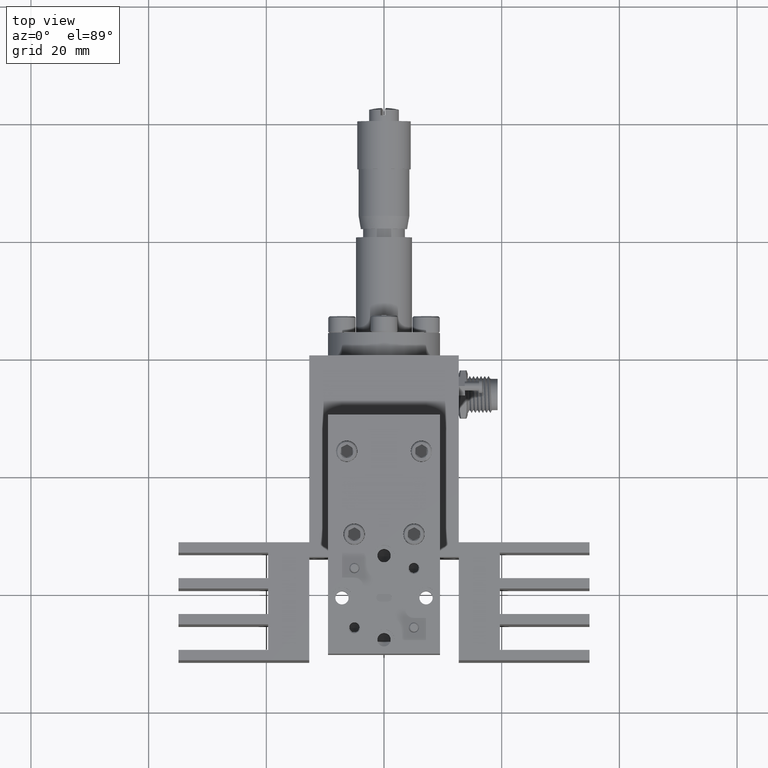
[diagram: clean part render]
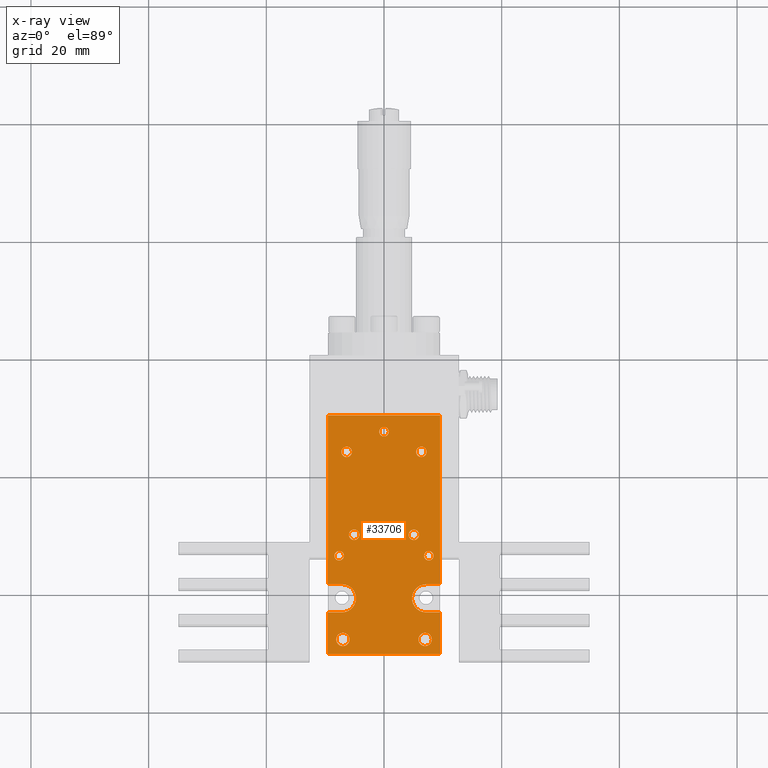
[diagram: x-ray — body ghosted, one internal face saturated and labeled with its STEP entity id]
A machine part, top view, then the same camera in x-ray: the body is ghosted and one INTERNAL B-rep face — a face not visible from any outside direction — is saturated and labeled: STEP entity #33706.
In plain terms, the highlighted planar face has unit normal (0, -0, 1).
Its self-contained STEP definition (entity closure, byte-faithful):
#109 = AXIS2_PLACEMENT_3D ( 'NONE', #19603, #28106, #22612 ) ;
#292 = CARTESIAN_POINT ( 'NONE',  ( -0.2814999999999998600, -0.8300000000000014000, 0.7399999999999997700 ) ) ;
#324 = AXIS2_PLACEMENT_3D ( 'NONE', #17453, #26768, #8690 ) ;
#485 = DIRECTION ( 'NONE',  ( 1.000000000000000000, 2.498001805406602200E-016, -1.277033319180349500E-016 ) ) ;
#520 = CARTESIAN_POINT ( 'NONE',  ( 0.03174999999999986200, 0.2849999999999987500, 0.7399999999999999900 ) ) ;
#527 = DIRECTION ( 'NONE',  ( -1.000000000000000000, -2.498001805406602200E-016, 1.277033319180349500E-016 ) ) ;
#573 = CIRCLE ( 'NONE', #11907, 0.03175000000000000700 ) ;
#629 = AXIS2_PLACEMENT_3D ( 'NONE', #35994, #36383, #33369 ) ;
#778 = EDGE_CURVE ( 'NONE', #7508, #6339, #7442, .T. ) ;
#887 = VERTEX_POINT ( 'NONE', #7432 ) ;
#899 = DIRECTION ( 'NONE',  ( 3.778555552436724800E-016, -1.000000000000000000, -3.341435941113369400E-016 ) ) ;
#1078 = EDGE_CURVE ( 'NONE', #6339, #7508, #11674, .T. ) ;
#1084 = AXIS2_PLACEMENT_3D ( 'NONE', #1394, #22879, #34709 ) ;
#1236 = VECTOR ( 'NONE', #4038, 39.37007874015748100 ) ;
#1394 = CARTESIAN_POINT ( 'NONE',  ( 0.2499999999999999700, 0.1499999999999986600, 0.7399999999999999900 ) ) ;
#1592 = AXIS2_PLACEMENT_3D ( 'NONE', #11027, #16255, #5489 ) ;
#1703 = DIRECTION ( 'NONE',  ( 1.162264728904460000E-016, -2.220446049250312600E-016, 1.000000000000000000 ) ) ;
#1754 = DIRECTION ( 'NONE',  ( -1.162264728904460000E-016, 2.220446049250312600E-016, -1.000000000000000000 ) ) ;
#1968 = DIRECTION ( 'NONE',  ( 1.000000000000000000, 0.0000000000000000000, 0.0000000000000000000 ) ) ;
#2056 = DIRECTION ( 'NONE',  ( 1.162264728904460000E-016, -2.220446049250312600E-016, 1.000000000000000000 ) ) ;
#2266 = LINE ( 'NONE', #8242, #22005 ) ;
#2375 = AXIS2_PLACEMENT_3D ( 'NONE', #14386, #17381, #5875 ) ;
#2565 = VERTEX_POINT ( 'NONE', #23966 ) ;
#2600 = ORIENTED_EDGE ( 'NONE', *, *, #33361, .F. ) ;
#2830 = DIRECTION ( 'NONE',  ( 1.162264728904460000E-016, -2.220446049250312600E-016, 1.000000000000000000 ) ) ;
#3078 = CARTESIAN_POINT ( 'NONE',  ( -0.3750000000000002800, 0.3949999999999988000, 0.7400000000000002100 ) ) ;
#3146 = AXIS2_PLACEMENT_3D ( 'NONE', #38274, #29589, #14160 ) ;
#3288 = CARTESIAN_POINT ( 'NONE',  ( -0.3749999999999999400, -0.7360000000000017600, 0.7399999999999997700 ) ) ;
#3413 = VERTEX_POINT ( 'NONE', #3288 ) ;
#3642 = CIRCLE ( 'NONE', #29621, 0.04450000000000003300 ) ;
#3835 = FACE_BOUND ( 'NONE', #13826, .T. ) ;
#3912 = CIRCLE ( 'NONE', #22958, 0.03174999999999997300 ) ;
#3972 = DIRECTION ( 'NONE',  ( 1.162264728904460000E-016, -2.220446049250312600E-016, 1.000000000000000000 ) ) ;
#4038 = DIRECTION ( 'NONE',  ( -3.778555552436724800E-016, 1.000000000000000000, 3.341435941113369400E-016 ) ) ;
#4095 = ORIENTED_EDGE ( 'NONE', *, *, #23545, .T. ) ;
#4251 = ORIENTED_EDGE ( 'NONE', *, *, #33182, .F. ) ;
#4394 = VERTEX_POINT ( 'NONE', #31050 ) ;
#4556 = LINE ( 'NONE', #8130, #37853 ) ;
#4641 = DIRECTION ( 'NONE',  ( 1.162264728904460000E-016, -2.220446049250312600E-016, 1.000000000000000000 ) ) ;
#4646 = CARTESIAN_POINT ( 'NONE',  ( 0.2815000000000001400, -0.9240000000000008200, 0.7399999999999996600 ) ) ;
#4681 = CIRCLE ( 'NONE', #20338, 0.03500000000000000300 ) ;
#4861 = LINE ( 'NONE', #35981, #21263 ) ;
#4921 = DIRECTION ( 'NONE',  ( -1.000000000000000000, 0.0000000000000000000, 0.0000000000000000000 ) ) ;
#4951 = VERTEX_POINT ( 'NONE', #22925 ) ;
#5027 = CIRCLE ( 'NONE', #30206, 0.04450000000000003300 ) ;
#5170 = CIRCLE ( 'NONE', #2375, 0.03499999999999996900 ) ;
#5213 = VERTEX_POINT ( 'NONE', #9437 ) ;
#5489 = DIRECTION ( 'NONE',  ( 1.000000000000000000, 0.0000000000000000000, 0.0000000000000000000 ) ) ;
#5711 = DIRECTION ( 'NONE',  ( 3.778555552436724800E-016, -1.000000000000000000, -3.341435941113369400E-016 ) ) ;
#5875 = DIRECTION ( 'NONE',  ( 1.000000000000000000, 4.878299988686188300E-016, 0.0000000000000000000 ) ) ;
#5938 = ORIENTED_EDGE ( 'NONE', *, *, #24572, .F. ) ;
#6339 = VERTEX_POINT ( 'NONE', #31991 ) ;
#6373 = EDGE_CURVE ( 'NONE', #5213, #16168, #4556, .T. ) ;
#6582 = EDGE_LOOP ( 'NONE', ( #29680, #31853 ) ) ;
#6659 = ORIENTED_EDGE ( 'NONE', *, *, #9657, .T. ) ;
#6759 = VERTEX_POINT ( 'NONE', #31795 ) ;
#6847 = DIRECTION ( 'NONE',  ( 1.000000000000000000, 0.0000000000000000000, 0.0000000000000000000 ) ) ;
#6887 = VERTEX_POINT ( 'NONE', #15131 ) ;
#6933 = EDGE_CURVE ( 'NONE', #28259, #3413, #4861, .T. ) ;
#7011 = DIRECTION ( 'NONE',  ( 1.000000000000000000, 0.0000000000000000000, 0.0000000000000000000 ) ) ;
#7050 = EDGE_CURVE ( 'NONE', #16168, #14630, #23612, .T. ) ;
#7136 = DIRECTION ( 'NONE',  ( 1.000000000000000000, 0.0000000000000000000, 0.0000000000000000000 ) ) ;
#7386 = CARTESIAN_POINT ( 'NONE',  ( -0.2999999999999999900, -0.5450000000000015900, 0.7399999999999997700 ) ) ;
#7432 = CARTESIAN_POINT ( 'NONE',  ( -0.2850000000000001400, 0.1499999999999985500, 0.7399999999999999900 ) ) ;
#7442 = CIRCLE ( 'NONE', #1084, 0.03499999999999996900 ) ;
#7508 = VERTEX_POINT ( 'NONE', #20346 ) ;
#7659 = PLANE ( 'NONE',  #109 ) ;
#7757 = ORIENTED_EDGE ( 'NONE', *, *, #26638, .F. ) ;
#7806 = DIRECTION ( 'NONE',  ( 1.162264728904460000E-016, -2.220446049250312600E-016, 1.000000000000000000 ) ) ;
#7839 = ORIENTED_EDGE ( 'NONE', *, *, #9079, .F. ) ;
#7979 = LINE ( 'NONE', #27112, #38955 ) ;
#8107 = CARTESIAN_POINT ( 'NONE',  ( -0.2000000000000000100, -0.4050000000000014100, 0.7399999999999998800 ) ) ;
#8130 = CARTESIAN_POINT ( 'NONE',  ( -0.3749999999999999400, -0.9240000000000010400, 0.7399999999999997700 ) ) ;
#8147 = DIRECTION ( 'NONE',  ( -1.000000000000000000, 0.0000000000000000000, 0.0000000000000000000 ) ) ;
#8242 = CARTESIAN_POINT ( 'NONE',  ( 0.3749999999999997800, 0.3949999999999990700, 0.7399999999999999900 ) ) ;
#8388 = VERTEX_POINT ( 'NONE', #30159 ) ;
#8450 = ORIENTED_EDGE ( 'NONE', *, *, #18132, .F. ) ;
#8497 = CARTESIAN_POINT ( 'NONE',  ( -0.3749999999999997800, -1.205000000000001600, 0.7399999999999996600 ) ) ;
#8534 = FACE_BOUND ( 'NONE', #25300, .T. ) ;
#8690 = DIRECTION ( 'NONE',  ( 1.000000000000000000, 4.878299988686188300E-016, 0.0000000000000000000 ) ) ;
#8978 = ORIENTED_EDGE ( 'NONE', *, *, #14873, .F. ) ;
#9079 = EDGE_CURVE ( 'NONE', #12988, #23851, #18723, .T. ) ;
#9321 = AXIS2_PLACEMENT_3D ( 'NONE', #27726, #36790, #7011 ) ;
#9437 = CARTESIAN_POINT ( 'NONE',  ( -0.3749999999999999400, -0.9240000000000010400, 0.7399999999999997700 ) ) ;
#9630 = DIRECTION ( 'NONE',  ( 1.000000000000000000, 0.0000000000000000000, 0.0000000000000000000 ) ) ;
#9657 = EDGE_CURVE ( 'NONE', #6759, #28259, #2266, .T. ) ;
#9920 = CARTESIAN_POINT ( 'NONE',  ( -0.03175000000000015300, 0.2849999999999987500, 0.7399999999999999900 ) ) ;
#9925 = FACE_BOUND ( 'NONE', #32447, .T. ) ;
#10045 = DIRECTION ( 'NONE',  ( -1.000000000000000000, -9.802408205578417900E-016, 1.277033319180347100E-016 ) ) ;
#10340 = EDGE_CURVE ( 'NONE', #27963, #30504, #36098, .T. ) ;
#10920 = ORIENTED_EDGE ( 'NONE', *, *, #10971, .F. ) ;
#10952 = EDGE_LOOP ( 'NONE', ( #7757, #24757 ) ) ;
#10971 = EDGE_CURVE ( 'NONE', #36324, #12662, #36964, .T. ) ;
#11027 = CARTESIAN_POINT ( 'NONE',  ( 0.2000000000000000900, -0.4050000000000013000, 0.7399999999999997700 ) ) ;
#11289 = CARTESIAN_POINT ( 'NONE',  ( 0.2750000000000004100, -1.105000000000000900, 0.7399999999999994400 ) ) ;
#11298 = CARTESIAN_POINT ( 'NONE',  ( -0.2000000000000000100, -0.4050000000000014100, 0.7399999999999998800 ) ) ;
#11313 = EDGE_CURVE ( 'NONE', #12662, #31791, #21004, .T. ) ;
#11486 = ORIENTED_EDGE ( 'NONE', *, *, #10340, .F. ) ;
#11648 = EDGE_CURVE ( 'NONE', #36324, #6759, #34099, .T. ) ;
#11674 = CIRCLE ( 'NONE', #324, 0.03499999999999996900 ) ;
#11803 = VERTEX_POINT ( 'NONE', #8497 ) ;
#11907 = AXIS2_PLACEMENT_3D ( 'NONE', #30718, #3972, #6847 ) ;
#12085 = CARTESIAN_POINT ( 'NONE',  ( 0.3195000000000004500, -1.105000000000000900, 0.7399999999999994400 ) ) ;
#12344 = CARTESIAN_POINT ( 'NONE',  ( 0.3000000000000001600, -0.5450000000000013700, 0.7399999999999997700 ) ) ;
#12387 = ORIENTED_EDGE ( 'NONE', *, *, #1078, .F. ) ;
#12574 = CIRCLE ( 'NONE', #15848, 0.03500000000000000300 ) ;
#12653 = ORIENTED_EDGE ( 'NONE', *, *, #35067, .F. ) ;
#12662 = VERTEX_POINT ( 'NONE', #28980 ) ;
#12683 = ORIENTED_EDGE ( 'NONE', *, *, #11313, .F. ) ;
#12885 = VECTOR ( 'NONE', #10045, 39.37007874015748100 ) ;
#12914 = VERTEX_POINT ( 'NONE', #12085 ) ;
#12988 = VERTEX_POINT ( 'NONE', #15353 ) ;
#13293 = DIRECTION ( 'NONE',  ( -1.162264728904460000E-016, 2.220446049250312600E-016, -1.000000000000000000 ) ) ;
#13528 = VECTOR ( 'NONE', #527, 39.37007874015748100 ) ;
#13740 = AXIS2_PLACEMENT_3D ( 'NONE', #12344, #30026, #21388 ) ;
#13755 = DIRECTION ( 'NONE',  ( -1.000000000000000000, 0.0000000000000000000, 0.0000000000000000000 ) ) ;
#13826 = EDGE_LOOP ( 'NONE', ( #34257, #15597 ) ) ;
#13919 = AXIS2_PLACEMENT_3D ( 'NONE', #23083, #1703, #28964 ) ;
#14160 = DIRECTION ( 'NONE',  ( -1.000000000000000000, 0.0000000000000000000, 0.0000000000000000000 ) ) ;
#14289 = LINE ( 'NONE', #15482, #20872 ) ;
#14386 = CARTESIAN_POINT ( 'NONE',  ( -0.2500000000000001700, 0.1499999999999985200, 0.7399999999999999900 ) ) ;
#14387 = CARTESIAN_POINT ( 'NONE',  ( -0.2814999999999998600, -0.7360000000000017600, 0.7399999999999997700 ) ) ;
#14630 = VERTEX_POINT ( 'NONE', #36773 ) ;
#14708 = AXIS2_PLACEMENT_3D ( 'NONE', #20685, #2830, #32996 ) ;
#14873 = EDGE_CURVE ( 'NONE', #2565, #6887, #4681, .T. ) ;
#15131 = CARTESIAN_POINT ( 'NONE',  ( -0.2350000000000000100, -0.4050000000000014100, 0.7399999999999998800 ) ) ;
#15157 = CARTESIAN_POINT ( 'NONE',  ( -0.2304999999999998400, -1.105000000000001100, 0.7399999999999996600 ) ) ;
#15166 = CIRCLE ( 'NONE', #9321, 0.03174999999999993800 ) ;
#15353 = CARTESIAN_POINT ( 'NONE',  ( 0.1650000000000000900, -0.4050000000000013000, 0.7399999999999997700 ) ) ;
#15482 = CARTESIAN_POINT ( 'NONE',  ( -0.3750000000000002800, 0.3949999999999988000, 0.7400000000000002100 ) ) ;
#15597 = ORIENTED_EDGE ( 'NONE', *, *, #18005, .T. ) ;
#15678 = VERTEX_POINT ( 'NONE', #9920 ) ;
#15848 = AXIS2_PLACEMENT_3D ( 'NONE', #8107, #2056, #29317 ) ;
#16168 = VERTEX_POINT ( 'NONE', #27049 ) ;
#16255 = DIRECTION ( 'NONE',  ( 1.162264728904460000E-016, -2.220446049250312600E-016, 1.000000000000000000 ) ) ;
#16511 = EDGE_CURVE ( 'NONE', #12914, #28857, #20050, .T. ) ;
#16751 = DIRECTION ( 'NONE',  ( -3.778555552436724800E-016, 1.000000000000000000, 3.341435941113369400E-016 ) ) ;
#16874 = CARTESIAN_POINT ( 'NONE',  ( 0.2350000000000001000, -0.4050000000000013000, 0.7399999999999997700 ) ) ;
#17006 = EDGE_CURVE ( 'NONE', #6887, #2565, #12574, .T. ) ;
#17020 = CARTESIAN_POINT ( 'NONE',  ( 0.3750000000000003900, -0.9240000000000008200, 0.7399999999999996600 ) ) ;
#17304 = CARTESIAN_POINT ( 'NONE',  ( -0.3194999999999999000, -1.105000000000001100, 0.7399999999999996600 ) ) ;
#17381 = DIRECTION ( 'NONE',  ( 1.162264728904460000E-016, -2.220446049250312600E-016, 1.000000000000000000 ) ) ;
#17415 = VECTOR ( 'NONE', #22811, 39.37007874015748100 ) ;
#17453 = CARTESIAN_POINT ( 'NONE',  ( 0.2499999999999999700, 0.1499999999999986600, 0.7399999999999999900 ) ) ;
#17554 = EDGE_CURVE ( 'NONE', #23851, #12988, #34086, .T. ) ;
#18005 = EDGE_CURVE ( 'NONE', #30410, #24655, #33607, .T. ) ;
#18132 = EDGE_CURVE ( 'NONE', #19325, #15678, #21865, .T. ) ;
#18440 = CARTESIAN_POINT ( 'NONE',  ( 0.3749999999999997800, 0.3949999999999990700, 0.7399999999999999900 ) ) ;
#18592 = EDGE_CURVE ( 'NONE', #35075, #4951, #29315, .T. ) ;
#18723 = CIRCLE ( 'NONE', #1592, 0.03500000000000000300 ) ;
#18797 = ORIENTED_EDGE ( 'NONE', *, *, #7050, .F. ) ;
#18884 = AXIS2_PLACEMENT_3D ( 'NONE', #25743, #7806, #37449 ) ;
#19325 = VERTEX_POINT ( 'NONE', #520 ) ;
#19603 = CARTESIAN_POINT ( 'NONE',  ( 2.789435349370703000E-017, -0.4050000000000013600, 0.7399999999999997700 ) ) ;
#19627 = DIRECTION ( 'NONE',  ( 1.000000000000000000, 4.878299988686188300E-016, 0.0000000000000000000 ) ) ;
#19763 = DIRECTION ( 'NONE',  ( 1.162264728904460000E-016, -2.220446049250312600E-016, 1.000000000000000000 ) ) ;
#20050 = CIRCLE ( 'NONE', #27154, 0.04450000000000003300 ) ;
#20338 = AXIS2_PLACEMENT_3D ( 'NONE', #11298, #31894, #1968 ) ;
#20346 = CARTESIAN_POINT ( 'NONE',  ( 0.2150000000000000000, 0.1499999999999986900, 0.7399999999999999900 ) ) ;
#20408 = AXIS2_PLACEMENT_3D ( 'NONE', #292, #27313, #9630 ) ;
#20685 = CARTESIAN_POINT ( 'NONE',  ( -0.2814999999999998600, -0.8300000000000014000, 0.7399999999999997700 ) ) ;
#20872 = VECTOR ( 'NONE', #899, 39.37007874015748100 ) ;
#21004 = CIRCLE ( 'NONE', #3146, 0.09400000000000001400 ) ;
#21263 = VECTOR ( 'NONE', #5711, 39.37007874015748100 ) ;
#21388 = DIRECTION ( 'NONE',  ( 1.000000000000000000, 0.0000000000000000000, 0.0000000000000000000 ) ) ;
#21579 = EDGE_LOOP ( 'NONE', ( #8450, #4251 ) ) ;
#21800 = LINE ( 'NONE', #14387, #12885 ) ;
#21865 = CIRCLE ( 'NONE', #13919, 0.03175000000000000700 ) ;
#21988 = EDGE_CURVE ( 'NONE', #28857, #12914, #5027, .T. ) ;
#22005 = VECTOR ( 'NONE', #31852, 39.37007874015748100 ) ;
#22066 = CARTESIAN_POINT ( 'NONE',  ( -0.2749999999999998600, -1.105000000000001100, 0.7399999999999996600 ) ) ;
#22100 = ORIENTED_EDGE ( 'NONE', *, *, #17554, .F. ) ;
#22142 = LINE ( 'NONE', #17020, #17415 ) ;
#22452 = DIRECTION ( 'NONE',  ( -1.000000000000000000, 0.0000000000000000000, 0.0000000000000000000 ) ) ;
#22510 = CARTESIAN_POINT ( 'NONE',  ( -0.2500000000000001700, 0.1499999999999985200, 0.7399999999999999900 ) ) ;
#22612 = DIRECTION ( 'NONE',  ( 1.000000000000000000, 2.498001805406602200E-016, -1.277033319180349500E-016 ) ) ;
#22629 = VERTEX_POINT ( 'NONE', #35423 ) ;
#22811 = DIRECTION ( 'NONE',  ( 1.000000000000000000, 2.498001805406602200E-016, -1.277033319180349500E-016 ) ) ;
#22879 = DIRECTION ( 'NONE',  ( 1.162264728904460000E-016, -2.220446049250312600E-016, 1.000000000000000000 ) ) ;
#22925 = CARTESIAN_POINT ( 'NONE',  ( 0.3750000000000003900, -0.9240000000000008200, 0.7399999999999996600 ) ) ;
#22958 = AXIS2_PLACEMENT_3D ( 'NONE', #7386, #4641, #7136 ) ;
#23029 = FACE_OUTER_BOUND ( 'NONE', #36611, .T. ) ;
#23049 = CARTESIAN_POINT ( 'NONE',  ( 0.3749999999999997800, 0.3949999999999990700, 0.7399999999999999900 ) ) ;
#23083 = CARTESIAN_POINT ( 'NONE',  ( -1.444677710793485000E-016, 0.2849999999999987500, 0.7399999999999999900 ) ) ;
#23229 = EDGE_LOOP ( 'NONE', ( #12387, #28606 ) ) ;
#23247 = AXIS2_PLACEMENT_3D ( 'NONE', #22510, #19763, #19627 ) ;
#23322 = CARTESIAN_POINT ( 'NONE',  ( -0.2814999999999998600, -0.7360000000000017600, 0.7399999999999997700 ) ) ;
#23545 = EDGE_CURVE ( 'NONE', #5213, #11803, #14289, .T. ) ;
#23612 = CIRCLE ( 'NONE', #20408, 0.09400000000000001400 ) ;
#23674 = CARTESIAN_POINT ( 'NONE',  ( 0.3750000000000004400, -1.205000000000001400, 0.7399999999999994400 ) ) ;
#23851 = VERTEX_POINT ( 'NONE', #16874 ) ;
#23966 = CARTESIAN_POINT ( 'NONE',  ( -0.1650000000000000100, -0.4050000000000014100, 0.7399999999999998800 ) ) ;
#24572 = EDGE_CURVE ( 'NONE', #30504, #27963, #3912, .T. ) ;
#24655 = VERTEX_POINT ( 'NONE', #17304 ) ;
#24757 = ORIENTED_EDGE ( 'NONE', *, *, #38484, .F. ) ;
#24931 = FACE_BOUND ( 'NONE', #21579, .T. ) ;
#24974 = CARTESIAN_POINT ( 'NONE',  ( -0.3317499999999999300, -0.5450000000000015900, 0.7399999999999997700 ) ) ;
#25300 = EDGE_LOOP ( 'NONE', ( #8978, #31927 ) ) ;
#25551 = ORIENTED_EDGE ( 'NONE', *, *, #21988, .T. ) ;
#25743 = CARTESIAN_POINT ( 'NONE',  ( 0.2000000000000000900, -0.4050000000000013000, 0.7399999999999997700 ) ) ;
#25764 = EDGE_CURVE ( 'NONE', #887, #8388, #26767, .T. ) ;
#25788 = DIRECTION ( 'NONE',  ( -1.162264728904460000E-016, 2.220446049250312600E-016, -1.000000000000000000 ) ) ;
#26638 = EDGE_CURVE ( 'NONE', #4394, #22629, #33745, .T. ) ;
#26767 = CIRCLE ( 'NONE', #23247, 0.03499999999999996900 ) ;
#26768 = DIRECTION ( 'NONE',  ( 1.162264728904460000E-016, -2.220446049250312600E-016, 1.000000000000000000 ) ) ;
#26800 = FACE_BOUND ( 'NONE', #23229, .T. ) ;
#26829 = VERTEX_POINT ( 'NONE', #23322 ) ;
#27048 = EDGE_CURVE ( 'NONE', #11803, #35075, #7979, .T. ) ;
#27049 = CARTESIAN_POINT ( 'NONE',  ( -0.2814999999999998100, -0.9240000000000010400, 0.7399999999999997700 ) ) ;
#27112 = CARTESIAN_POINT ( 'NONE',  ( 0.3750000000000004400, -1.205000000000001400, 0.7399999999999994400 ) ) ;
#27154 = AXIS2_PLACEMENT_3D ( 'NONE', #11289, #32006, #8147 ) ;
#27313 = DIRECTION ( 'NONE',  ( 1.162264728904460000E-016, -2.220446049250312600E-016, 1.000000000000000000 ) ) ;
#27319 = EDGE_CURVE ( 'NONE', #8388, #887, #5170, .T. ) ;
#27679 = ORIENTED_EDGE ( 'NONE', *, *, #37732, .F. ) ;
#27726 = CARTESIAN_POINT ( 'NONE',  ( 0.3000000000000001600, -0.5450000000000013700, 0.7399999999999997700 ) ) ;
#27778 = CARTESIAN_POINT ( 'NONE',  ( -0.2682500000000000400, -0.5450000000000015900, 0.7399999999999997700 ) ) ;
#27963 = VERTEX_POINT ( 'NONE', #27778 ) ;
#28106 = DIRECTION ( 'NONE',  ( 1.277033319180350000E-016, -2.220446049250312800E-016, 1.000000000000000000 ) ) ;
#28146 = ORIENTED_EDGE ( 'NONE', *, *, #27048, .T. ) ;
#28259 = VERTEX_POINT ( 'NONE', #3078 ) ;
#28380 = VECTOR ( 'NONE', #16751, 39.37007874015748100 ) ;
#28606 = ORIENTED_EDGE ( 'NONE', *, *, #778, .F. ) ;
#28857 = VERTEX_POINT ( 'NONE', #32440 ) ;
#28964 = DIRECTION ( 'NONE',  ( 1.000000000000000000, 0.0000000000000000000, 0.0000000000000000000 ) ) ;
#28980 = CARTESIAN_POINT ( 'NONE',  ( 0.2815000000000000800, -0.7360000000000016500, 0.7399999999999997700 ) ) ;
#29078 = DIRECTION ( 'NONE',  ( 1.000000000000000000, 2.498001805406602200E-016, -1.277033319180349500E-016 ) ) ;
#29148 = EDGE_LOOP ( 'NONE', ( #22100, #7839 ) ) ;
#29315 = LINE ( 'NONE', #23049, #28380 ) ;
#29317 = DIRECTION ( 'NONE',  ( 1.000000000000000000, 0.0000000000000000000, 0.0000000000000000000 ) ) ;
#29589 = DIRECTION ( 'NONE',  ( 1.162264728904460000E-016, -2.220446049250312600E-016, 1.000000000000000000 ) ) ;
#29621 = AXIS2_PLACEMENT_3D ( 'NONE', #32091, #25788, #13755 ) ;
#29680 = ORIENTED_EDGE ( 'NONE', *, *, #27319, .F. ) ;
#29710 = EDGE_CURVE ( 'NONE', #24655, #30410, #3642, .T. ) ;
#30026 = DIRECTION ( 'NONE',  ( 1.162264728904460000E-016, -2.220446049250312600E-016, 1.000000000000000000 ) ) ;
#30159 = CARTESIAN_POINT ( 'NONE',  ( -0.2150000000000001900, 0.1499999999999985500, 0.7399999999999999900 ) ) ;
#30167 = CARTESIAN_POINT ( 'NONE',  ( 0.2815000000000000800, -0.7360000000000016500, 0.7399999999999997700 ) ) ;
#30206 = AXIS2_PLACEMENT_3D ( 'NONE', #31426, #1754, #4921 ) ;
#30410 = VERTEX_POINT ( 'NONE', #15157 ) ;
#30504 = VERTEX_POINT ( 'NONE', #24974 ) ;
#30718 = CARTESIAN_POINT ( 'NONE',  ( -1.444677710793485000E-016, 0.2849999999999987500, 0.7399999999999999900 ) ) ;
#31031 = FACE_BOUND ( 'NONE', #10952, .T. ) ;
#31034 = CARTESIAN_POINT ( 'NONE',  ( 0.3750000000000003900, -0.7360000000000016500, 0.7399999999999997700 ) ) ;
#31050 = CARTESIAN_POINT ( 'NONE',  ( 0.3317500000000001000, -0.5450000000000013700, 0.7399999999999997700 ) ) ;
#31426 = CARTESIAN_POINT ( 'NONE',  ( 0.2750000000000004100, -1.105000000000000900, 0.7399999999999994400 ) ) ;
#31791 = VERTEX_POINT ( 'NONE', #4646 ) ;
#31795 = CARTESIAN_POINT ( 'NONE',  ( 0.3749999999999997800, 0.3949999999999990700, 0.7399999999999999900 ) ) ;
#31852 = DIRECTION ( 'NONE',  ( -1.000000000000000000, -2.498001805406602200E-016, 1.277033319180349500E-016 ) ) ;
#31853 = ORIENTED_EDGE ( 'NONE', *, *, #25764, .F. ) ;
#31894 = DIRECTION ( 'NONE',  ( 1.162264728904460000E-016, -2.220446049250312600E-016, 1.000000000000000000 ) ) ;
#31927 = ORIENTED_EDGE ( 'NONE', *, *, #17006, .F. ) ;
#31991 = CARTESIAN_POINT ( 'NONE',  ( 0.2849999999999999200, 0.1499999999999986900, 0.7399999999999999900 ) ) ;
#32006 = DIRECTION ( 'NONE',  ( -1.162264728904460000E-016, 2.220446049250312600E-016, -1.000000000000000000 ) ) ;
#32091 = CARTESIAN_POINT ( 'NONE',  ( -0.2749999999999998600, -1.105000000000001100, 0.7399999999999996600 ) ) ;
#32440 = CARTESIAN_POINT ( 'NONE',  ( 0.2305000000000003700, -1.105000000000000900, 0.7399999999999994400 ) ) ;
#32447 = EDGE_LOOP ( 'NONE', ( #11486, #5938 ) ) ;
#32455 = AXIS2_PLACEMENT_3D ( 'NONE', #22066, #13293, #22452 ) ;
#32691 = ORIENTED_EDGE ( 'NONE', *, *, #16511, .T. ) ;
#32916 = FACE_BOUND ( 'NONE', #34787, .T. ) ;
#32996 = DIRECTION ( 'NONE',  ( 1.000000000000000000, 0.0000000000000000000, 0.0000000000000000000 ) ) ;
#33182 = EDGE_CURVE ( 'NONE', #15678, #19325, #573, .T. ) ;
#33361 = EDGE_CURVE ( 'NONE', #31791, #4951, #22142, .T. ) ;
#33369 = DIRECTION ( 'NONE',  ( 1.000000000000000000, 0.0000000000000000000, 0.0000000000000000000 ) ) ;
#33607 = CIRCLE ( 'NONE', #32455, 0.04450000000000003300 ) ;
#33706 = ADVANCED_FACE ( 'NONE', ( #23029, #8534, #36682, #26800, #36188, #24931, #31031, #9925, #32916, #3835 ), #7659, .T. ) ;
#33745 = CIRCLE ( 'NONE', #13740, 0.03174999999999993800 ) ;
#34086 = CIRCLE ( 'NONE', #18884, 0.03500000000000000300 ) ;
#34099 = LINE ( 'NONE', #18440, #1236 ) ;
#34257 = ORIENTED_EDGE ( 'NONE', *, *, #29710, .T. ) ;
#34709 = DIRECTION ( 'NONE',  ( 1.000000000000000000, 4.878299988686188300E-016, 0.0000000000000000000 ) ) ;
#34716 = CIRCLE ( 'NONE', #14708, 0.09400000000000001400 ) ;
#34787 = EDGE_LOOP ( 'NONE', ( #25551, #32691 ) ) ;
#34996 = ORIENTED_EDGE ( 'NONE', *, *, #6373, .F. ) ;
#35067 = EDGE_CURVE ( 'NONE', #14630, #26829, #34716, .T. ) ;
#35075 = VERTEX_POINT ( 'NONE', #23674 ) ;
#35423 = CARTESIAN_POINT ( 'NONE',  ( 0.2682500000000001500, -0.5450000000000013700, 0.7399999999999997700 ) ) ;
#35479 = ORIENTED_EDGE ( 'NONE', *, *, #11648, .T. ) ;
#35831 = ORIENTED_EDGE ( 'NONE', *, *, #18592, .T. ) ;
#35981 = CARTESIAN_POINT ( 'NONE',  ( -0.3750000000000002800, 0.3949999999999988000, 0.7400000000000002100 ) ) ;
#35994 = CARTESIAN_POINT ( 'NONE',  ( -0.2999999999999999900, -0.5450000000000015900, 0.7399999999999997700 ) ) ;
#36098 = CIRCLE ( 'NONE', #629, 0.03174999999999997300 ) ;
#36188 = FACE_BOUND ( 'NONE', #6582, .T. ) ;
#36324 = VERTEX_POINT ( 'NONE', #31034 ) ;
#36383 = DIRECTION ( 'NONE',  ( 1.162264728904460000E-016, -2.220446049250312600E-016, 1.000000000000000000 ) ) ;
#36513 = ORIENTED_EDGE ( 'NONE', *, *, #6933, .T. ) ;
#36611 = EDGE_LOOP ( 'NONE', ( #2600, #12683, #10920, #35479, #6659, #36513, #27679, #12653, #18797, #34996, #4095, #28146, #35831 ) ) ;
#36682 = FACE_BOUND ( 'NONE', #29148, .T. ) ;
#36773 = CARTESIAN_POINT ( 'NONE',  ( -0.1874999999999998300, -0.8300000000000012900, 0.7399999999999997700 ) ) ;
#36790 = DIRECTION ( 'NONE',  ( 1.162264728904460000E-016, -2.220446049250312600E-016, 1.000000000000000000 ) ) ;
#36964 = LINE ( 'NONE', #30167, #13528 ) ;
#37449 = DIRECTION ( 'NONE',  ( 1.000000000000000000, 0.0000000000000000000, 0.0000000000000000000 ) ) ;
#37732 = EDGE_CURVE ( 'NONE', #26829, #3413, #21800, .T. ) ;
#37853 = VECTOR ( 'NONE', #29078, 39.37007874015748100 ) ;
#38274 = CARTESIAN_POINT ( 'NONE',  ( 0.2815000000000001400, -0.8300000000000012900, 0.7399999999999996600 ) ) ;
#38484 = EDGE_CURVE ( 'NONE', #22629, #4394, #15166, .T. ) ;
#38955 = VECTOR ( 'NONE', #485, 39.37007874015748100 ) ;